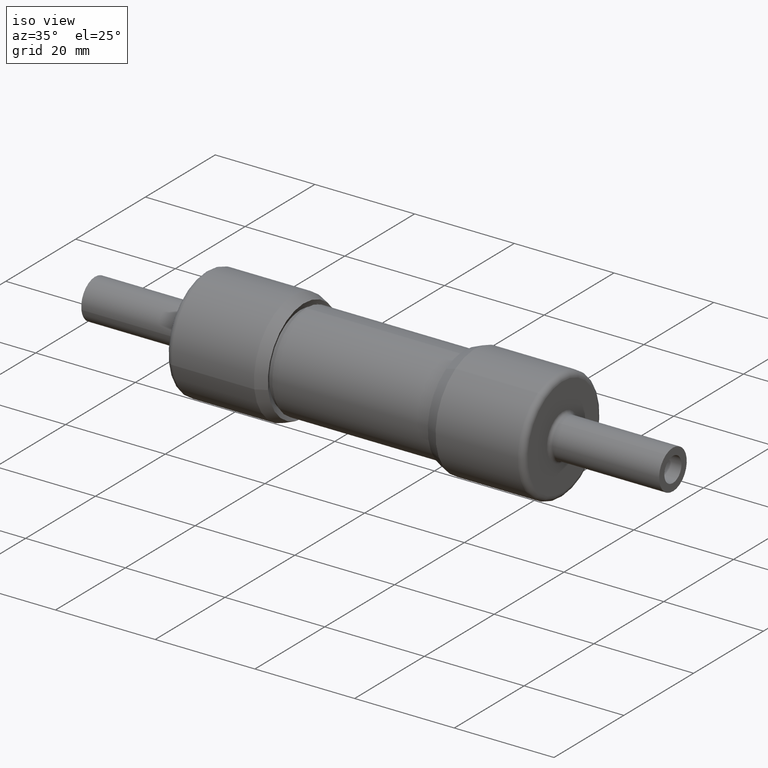
[diagram: clean part render]
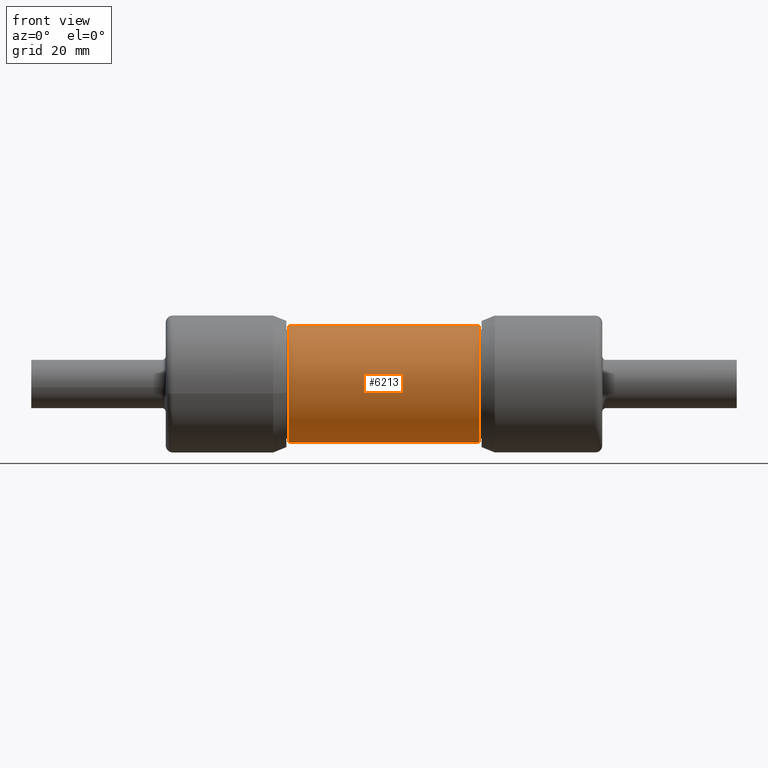
[diagram: tour spotlight — one face highlighted and labeled with its STEP entity id]
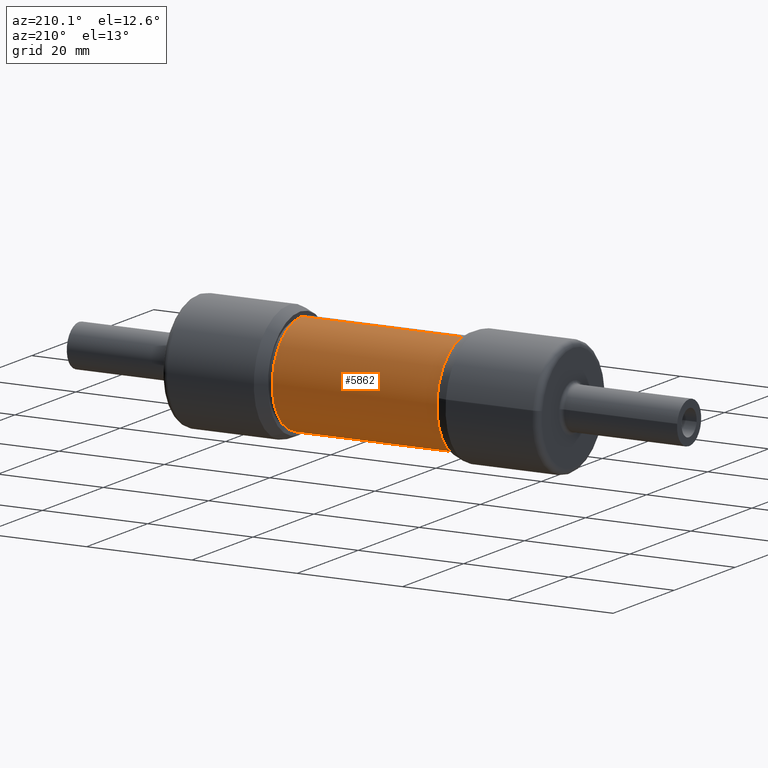
[diagram: tour spotlight — one face highlighted and labeled with its STEP entity id]
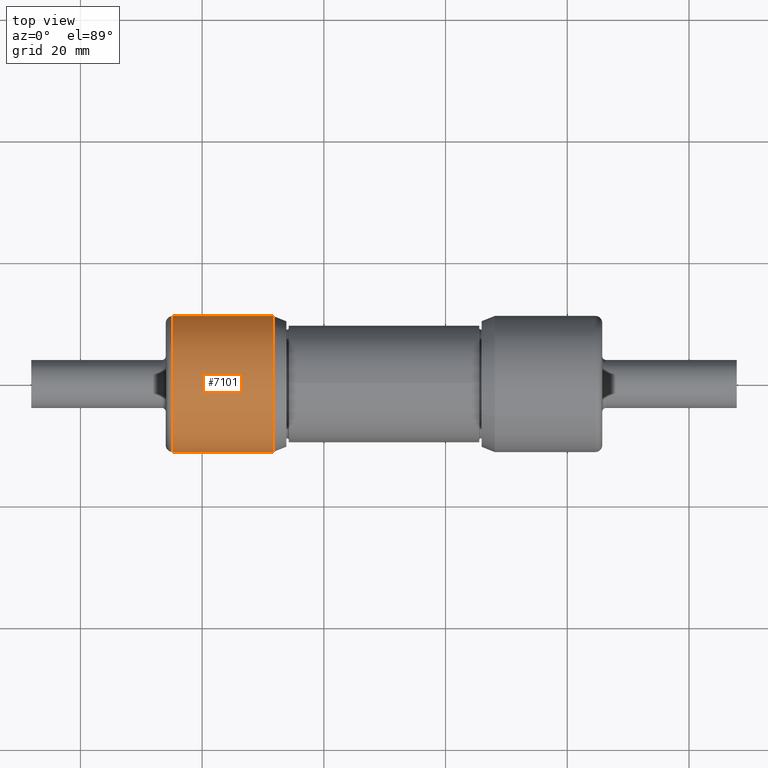
[diagram: tour spotlight — one face highlighted and labeled with its STEP entity id]
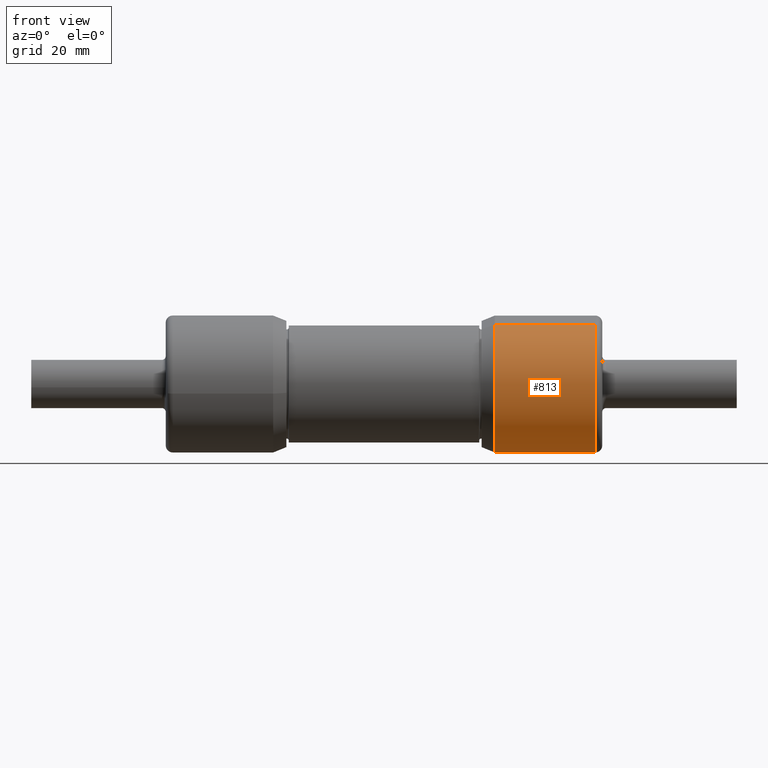
[diagram: tour spotlight — one face highlighted and labeled with its STEP entity id]
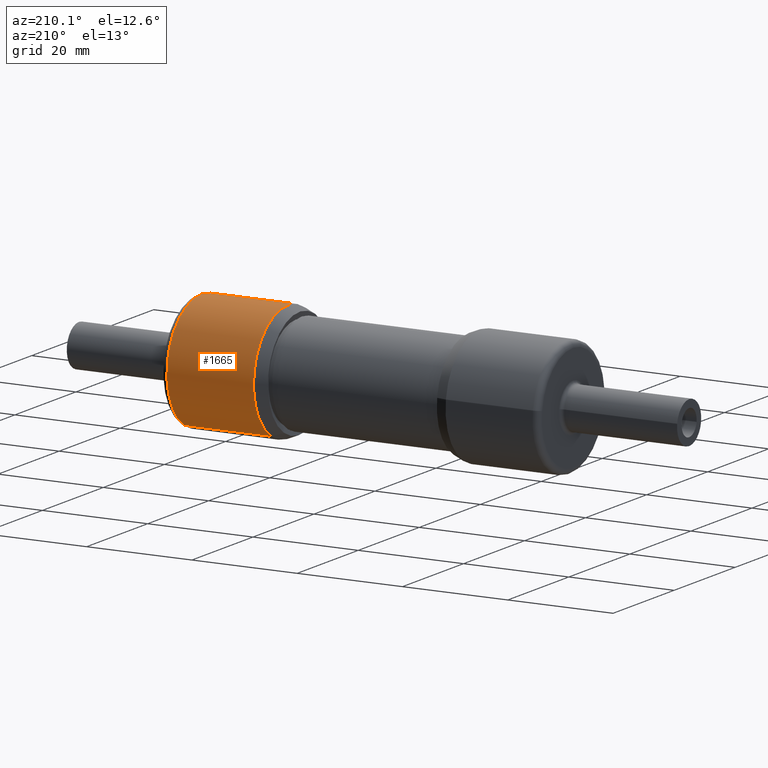
[diagram: tour spotlight — one face highlighted and labeled with its STEP entity id]
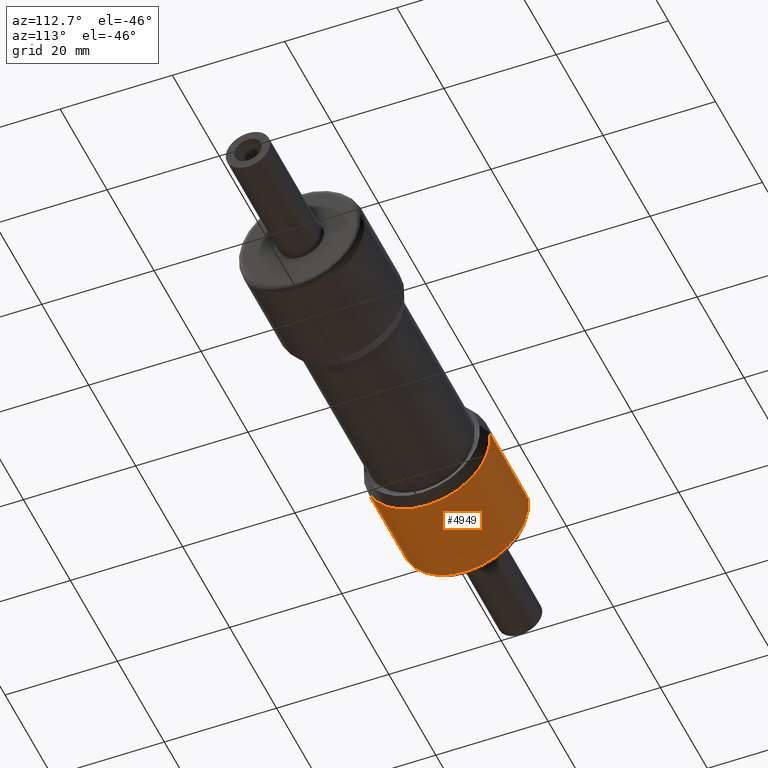
[diagram: tour spotlight — one face highlighted and labeled with its STEP entity id]
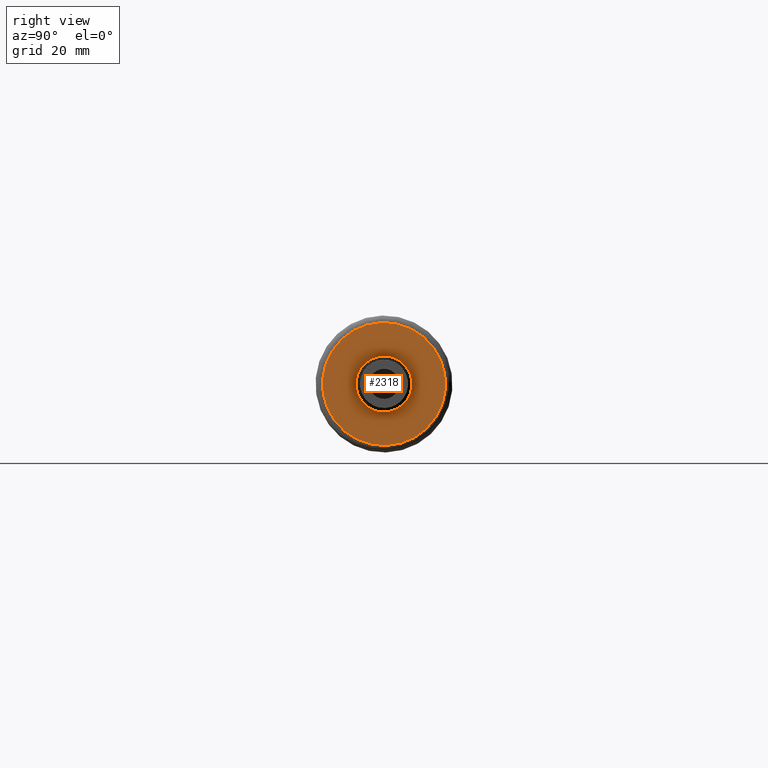
[diagram: tour spotlight — one face highlighted and labeled with its STEP entity id]
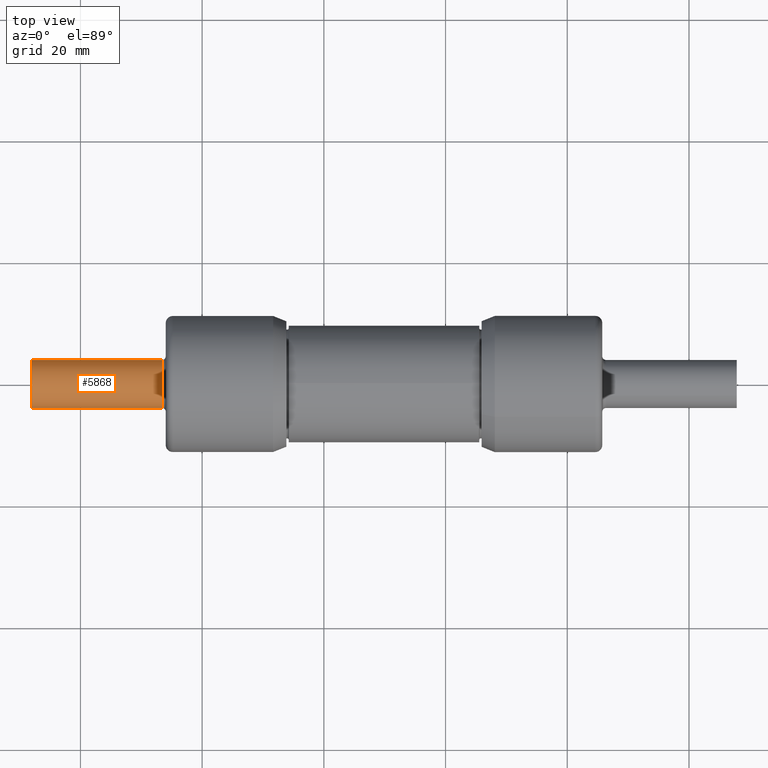
[diagram: tour spotlight — one face highlighted and labeled with its STEP entity id]
A machine part: a face-by-face anatomy tour. The part has 148 B-rep faces; the first image is the clean iso view, then the 8 largest visible faces are spotlighted one at a time (largest first), each with its STEP entity span.

Face 1 — front view, entity #6213. In plain terms, the highlighted cylindrical surface (partial cylindrical patch) has radius 9.6139 mm, axis along (-1, -0, -0).
Definition (entity closure, byte-faithful):
#175 = CYLINDRICAL_SURFACE ( 'NONE', #5671, 0.3785000000000000031 ) ;
#320 = CARTESIAN_POINT ( 'NONE',  ( 0.000000000000000000, 0.000000000000000000, 0.3785000000000000031 ) ) ;
#679 = DIRECTION ( 'NONE',  ( -1.000000000000000000, -0.000000000000000000, -0.000000000000000000 ) ) ;
#906 = CARTESIAN_POINT ( 'NONE',  ( 1.793000000000000149, 4.635288134772732102E-17, -0.3785000000000000031 ) ) ;
#931 = CARTESIAN_POINT ( 'NONE',  ( 0.000000000000000000, 4.635288134772732102E-17, -0.3785000000000000031 ) ) ;
#1742 = VERTEX_POINT ( 'NONE', #3941 ) ;
#1945 = DIRECTION ( 'NONE',  ( 0.000000000000000000, 0.000000000000000000, 1.000000000000000000 ) ) ;
#2062 = CARTESIAN_POINT ( 'NONE',  ( 0.5600000000000000533, 4.635288134772732102E-17, -0.3785000000000000031 ) ) ;
#2264 = DIRECTION ( 'NONE',  ( -1.000000000000000000, -0.000000000000000000, -0.000000000000000000 ) ) ;
#2379 = DIRECTION ( 'NONE',  ( 0.000000000000000000, 0.000000000000000000, 1.000000000000000000 ) ) ;
#2429 = EDGE_CURVE ( 'NONE', #4083, #7023, #3613, .T. ) ;
#2515 = DIRECTION ( 'NONE',  ( -1.000000000000000000, -0.000000000000000000, -0.000000000000000000 ) ) ;
#2835 = CARTESIAN_POINT ( 'NONE',  ( 0.5600000000000000533, 0.000000000000000000, 0.000000000000000000 ) ) ;
#2859 = ORIENTED_EDGE ( 'NONE', *, *, #2429, .F. ) ;
#2904 = CARTESIAN_POINT ( 'NONE',  ( 0.000000000000000000, 0.000000000000000000, 0.000000000000000000 ) ) ;
#2965 = AXIS2_PLACEMENT_3D ( 'NONE', #6874, #5709, #1945 ) ;
#3592 = CIRCLE ( 'NONE', #5546, 0.3785000000000000031 ) ;
#3613 = LINE ( 'NONE', #931, #5716 ) ;
#3614 = EDGE_CURVE ( 'NONE', #4083, #1742, #5730, .T. ) ;
#3915 = DIRECTION ( 'NONE',  ( 0.000000000000000000, 0.000000000000000000, 1.000000000000000000 ) ) ;
#3941 = CARTESIAN_POINT ( 'NONE',  ( 1.793000000000000149, 0.000000000000000000, 0.3785000000000000031 ) ) ;
#4083 = VERTEX_POINT ( 'NONE', #906 ) ;
#4168 = LINE ( 'NONE', #320, #5879 ) ;
#4636 = ORIENTED_EDGE ( 'NONE', *, *, #5703, .F. ) ;
#4810 = EDGE_CURVE ( 'NONE', #1742, #5047, #4168, .T. ) ;
#5047 = VERTEX_POINT ( 'NONE', #6274 ) ;
#5527 = FACE_OUTER_BOUND ( 'NONE', #6955, .T. ) ;
#5528 = ORIENTED_EDGE ( 'NONE', *, *, #4810, .T. ) ;
#5546 = AXIS2_PLACEMENT_3D ( 'NONE', #2835, #2264, #3915 ) ;
#5671 = AXIS2_PLACEMENT_3D ( 'NONE', #2904, #679, #2379 ) ;
#5703 = EDGE_CURVE ( 'NONE', #7023, #5047, #3592, .T. ) ;
#5709 = DIRECTION ( 'NONE',  ( -1.000000000000000000, -0.000000000000000000, -0.000000000000000000 ) ) ;
#5716 = VECTOR ( 'NONE', #6478, 39.37007874015748143 ) ;
#5730 = CIRCLE ( 'NONE', #2965, 0.3785000000000000031 ) ;
#5879 = VECTOR ( 'NONE', #2515, 39.37007874015748143 ) ;
#5968 = ORIENTED_EDGE ( 'NONE', *, *, #3614, .T. ) ;
#6213 = ADVANCED_FACE ( 'NONE', ( #5527 ), #175, .T. ) ;
#6274 = CARTESIAN_POINT ( 'NONE',  ( 0.5600000000000000533, 0.000000000000000000, 0.3785000000000000031 ) ) ;
#6478 = DIRECTION ( 'NONE',  ( -1.000000000000000000, -0.000000000000000000, -0.000000000000000000 ) ) ;
#6874 = CARTESIAN_POINT ( 'NONE',  ( 1.793000000000000149, 0.000000000000000000, 0.000000000000000000 ) ) ;
#6955 = EDGE_LOOP ( 'NONE', ( #2859, #5968, #5528, #4636 ) ) ;
#7023 = VERTEX_POINT ( 'NONE', #2062 ) ;

Face 2 — auxiliary view, entity #5862. In plain terms, the highlighted cylindrical surface (partial cylindrical patch) has radius 9.6139 mm, axis along (-1, -0, -0).
Definition (entity closure, byte-faithful):
#320 = CARTESIAN_POINT ( 'NONE',  ( 0.000000000000000000, 0.000000000000000000, 0.3785000000000000031 ) ) ;
#645 = EDGE_CURVE ( 'NONE', #5047, #7023, #3914, .T. ) ;
#811 = AXIS2_PLACEMENT_3D ( 'NONE', #6917, #4177, #4036 ) ;
#906 = CARTESIAN_POINT ( 'NONE',  ( 1.793000000000000149, 4.635288134772732102E-17, -0.3785000000000000031 ) ) ;
#931 = CARTESIAN_POINT ( 'NONE',  ( 0.000000000000000000, 4.635288134772732102E-17, -0.3785000000000000031 ) ) ;
#1034 = EDGE_CURVE ( 'NONE', #1742, #4083, #4799, .T. ) ;
#1399 = AXIS2_PLACEMENT_3D ( 'NONE', #5873, #5842, #2157 ) ;
#1674 = DIRECTION ( 'NONE',  ( -1.000000000000000000, -0.000000000000000000, -0.000000000000000000 ) ) ;
#1706 = AXIS2_PLACEMENT_3D ( 'NONE', #6904, #1674, #5872 ) ;
#1742 = VERTEX_POINT ( 'NONE', #3941 ) ;
#1931 = CYLINDRICAL_SURFACE ( 'NONE', #1399, 0.3785000000000000031 ) ;
#2062 = CARTESIAN_POINT ( 'NONE',  ( 0.5600000000000000533, 4.635288134772732102E-17, -0.3785000000000000031 ) ) ;
#2157 = DIRECTION ( 'NONE',  ( 0.000000000000000000, 0.000000000000000000, 1.000000000000000000 ) ) ;
#2322 = ORIENTED_EDGE ( 'NONE', *, *, #1034, .T. ) ;
#2366 = ORIENTED_EDGE ( 'NONE', *, *, #4810, .F. ) ;
#2429 = EDGE_CURVE ( 'NONE', #4083, #7023, #3613, .T. ) ;
#2515 = DIRECTION ( 'NONE',  ( -1.000000000000000000, -0.000000000000000000, -0.000000000000000000 ) ) ;
#3613 = LINE ( 'NONE', #931, #5716 ) ;
#3914 = CIRCLE ( 'NONE', #811, 0.3785000000000000031 ) ;
#3941 = CARTESIAN_POINT ( 'NONE',  ( 1.793000000000000149, 0.000000000000000000, 0.3785000000000000031 ) ) ;
#4036 = DIRECTION ( 'NONE',  ( 0.000000000000000000, 0.000000000000000000, 1.000000000000000000 ) ) ;
#4083 = VERTEX_POINT ( 'NONE', #906 ) ;
#4168 = LINE ( 'NONE', #320, #5879 ) ;
#4177 = DIRECTION ( 'NONE',  ( -1.000000000000000000, -0.000000000000000000, -0.000000000000000000 ) ) ;
#4563 = EDGE_LOOP ( 'NONE', ( #2322, #6708, #5898, #2366 ) ) ;
#4799 = CIRCLE ( 'NONE', #1706, 0.3785000000000000031 ) ;
#4810 = EDGE_CURVE ( 'NONE', #1742, #5047, #4168, .T. ) ;
#5047 = VERTEX_POINT ( 'NONE', #6274 ) ;
#5716 = VECTOR ( 'NONE', #6478, 39.37007874015748143 ) ;
#5842 = DIRECTION ( 'NONE',  ( -1.000000000000000000, -0.000000000000000000, -0.000000000000000000 ) ) ;
#5862 = ADVANCED_FACE ( 'NONE', ( #6205 ), #1931, .T. ) ;
#5872 = DIRECTION ( 'NONE',  ( 0.000000000000000000, 0.000000000000000000, 1.000000000000000000 ) ) ;
#5873 = CARTESIAN_POINT ( 'NONE',  ( 0.000000000000000000, 0.000000000000000000, 0.000000000000000000 ) ) ;
#5879 = VECTOR ( 'NONE', #2515, 39.37007874015748143 ) ;
#5898 = ORIENTED_EDGE ( 'NONE', *, *, #645, .F. ) ;
#6205 = FACE_OUTER_BOUND ( 'NONE', #4563, .T. ) ;
#6274 = CARTESIAN_POINT ( 'NONE',  ( 0.5600000000000000533, 0.000000000000000000, 0.3785000000000000031 ) ) ;
#6478 = DIRECTION ( 'NONE',  ( -1.000000000000000000, -0.000000000000000000, -0.000000000000000000 ) ) ;
#6708 = ORIENTED_EDGE ( 'NONE', *, *, #2429, .T. ) ;
#6904 = CARTESIAN_POINT ( 'NONE',  ( 1.793000000000000149, 0.000000000000000000, 0.000000000000000000 ) ) ;
#6917 = CARTESIAN_POINT ( 'NONE',  ( 0.5600000000000000533, 0.000000000000000000, 0.000000000000000000 ) ) ;
#7023 = VERTEX_POINT ( 'NONE', #2062 ) ;

Face 3 — top view, entity #7101. In plain terms, the highlighted cylindrical surface (partial cylindrical patch) has radius 11.2522 mm, axis along (-1, 0, -0).
Definition (entity closure, byte-faithful):
#18 = CARTESIAN_POINT ( 'NONE',  ( -0.2355000000000000149, -0.4386126864278156456, -0.06219253415463995432 ) ) ;
#568 = LINE ( 'NONE', #18, #3323 ) ;
#605 = EDGE_CURVE ( 'NONE', #3785, #4110, #5056, .T. ) ;
#691 = EDGE_LOOP ( 'NONE', ( #6012, #3832, #5855, #5286 ) ) ;
#831 = DIRECTION ( 'NONE',  ( -1.000000000000000000, 8.586881206085282632E-17, -8.326672684688819499E-17 ) ) ;
#1076 = LINE ( 'NONE', #5351, #7047 ) ;
#1119 = CARTESIAN_POINT ( 'NONE',  ( -0.1904999999999999472, 0.4386126864278159232, 0.06219253415463967677 ) ) ;
#1580 = CARTESIAN_POINT ( 'NONE',  ( -0.1905000000000000304, -0.4386126864278139803, -0.06219253415463969065 ) ) ;
#1959 = CARTESIAN_POINT ( 'NONE',  ( 0.4575561969086228697, 0.4386126864278158122, 0.06219253415463972534 ) ) ;
#2165 = DIRECTION ( 'NONE',  ( -1.000000000000000000, 8.586881206085282632E-17, -8.326672684688819499E-17 ) ) ;
#2224 = DIRECTION ( 'NONE',  ( -1.000000000000000000, 8.586881206085282632E-17, -8.326672684688819499E-17 ) ) ;
#2374 = AXIS2_PLACEMENT_3D ( 'NONE', #3414, #6865, #4233 ) ;
#2652 = AXIS2_PLACEMENT_3D ( 'NONE', #5748, #831, #5134 ) ;
#2798 = EDGE_CURVE ( 'NONE', #3785, #3491, #568, .T. ) ;
#3053 = DIRECTION ( 'NONE',  ( 7.708374699955566724E-17, 0.9900963576248625886, 0.1403894676176964951 ) ) ;
#3071 = CARTESIAN_POINT ( 'NONE',  ( 0.4575561969086228697, -0.4386126864278140358, -0.06219253415463969759 ) ) ;
#3234 = AXIS2_PLACEMENT_3D ( 'NONE', #4721, #6333, #3053 ) ;
#3323 = VECTOR ( 'NONE', #2224, 39.37007874015748143 ) ;
#3414 = CARTESIAN_POINT ( 'NONE',  ( -0.2354999999999999871, 1.212467626299230878E-16, -1.175726183078043669E-16 ) ) ;
#3491 = VERTEX_POINT ( 'NONE', #1580 ) ;
#3785 = VERTEX_POINT ( 'NONE', #3071 ) ;
#3832 = ORIENTED_EDGE ( 'NONE', *, *, #605, .T. ) ;
#3986 = EDGE_CURVE ( 'NONE', #3491, #5166, #4385, .T. ) ;
#4110 = VERTEX_POINT ( 'NONE', #1959 ) ;
#4233 = DIRECTION ( 'NONE',  ( 7.708374699955566724E-17, 0.9900963576248625886, 0.1403894676176964951 ) ) ;
#4385 = CIRCLE ( 'NONE', #3234, 0.4430000000000016702 ) ;
#4721 = CARTESIAN_POINT ( 'NONE',  ( -0.1905000000000000027, 1.173826660871846159E-16, -1.138256155996946668E-16 ) ) ;
#5056 = CIRCLE ( 'NONE', #2652, 0.4430000000000016702 ) ;
#5134 = DIRECTION ( 'NONE',  ( 0.000000000000000000, 0.9900963576248625886, 0.1403894676176964951 ) ) ;
#5166 = VERTEX_POINT ( 'NONE', #1119 ) ;
#5286 = ORIENTED_EDGE ( 'NONE', *, *, #3986, .F. ) ;
#5351 = CARTESIAN_POINT ( 'NONE',  ( -0.2354999999999999594, 0.4386126864278159232, 0.06219253415463966289 ) ) ;
#5535 = CYLINDRICAL_SURFACE ( 'NONE', #2374, 0.4430000000000016702 ) ;
#5605 = FACE_OUTER_BOUND ( 'NONE', #691, .T. ) ;
#5642 = EDGE_CURVE ( 'NONE', #4110, #5166, #1076, .T. ) ;
#5748 = CARTESIAN_POINT ( 'NONE',  ( 0.4575561969086228697, 6.173485030996724733E-17, -5.986409727027109720E-17 ) ) ;
#5855 = ORIENTED_EDGE ( 'NONE', *, *, #5642, .T. ) ;
#6012 = ORIENTED_EDGE ( 'NONE', *, *, #2798, .F. ) ;
#6333 = DIRECTION ( 'NONE',  ( -1.000000000000000000, 8.586881206085282632E-17, -8.326672684688819499E-17 ) ) ;
#6865 = DIRECTION ( 'NONE',  ( -1.000000000000000000, 8.586881206085282632E-17, -8.326672684688819499E-17 ) ) ;
#7047 = VECTOR ( 'NONE', #2165, 39.37007874015748143 ) ;
#7101 = ADVANCED_FACE ( 'NONE', ( #5605 ), #5535, .T. ) ;

Face 4 — front view, entity #813. In plain terms, the highlighted cylindrical surface (partial cylindrical patch) has radius 11.2522 mm, axis along (1, 0, 0).
Definition (entity closure, byte-faithful):
#37 = FACE_OUTER_BOUND ( 'NONE', #5969, .T. ) ;
#157 = CARTESIAN_POINT ( 'NONE',  ( 2.543499999999999872, 0.2194269814759292614, -0.3848386672364975669 ) ) ;
#213 = CIRCLE ( 'NONE', #5951, 0.4430000000000016702 ) ;
#225 = AXIS2_PLACEMENT_3D ( 'NONE', #1797, #654, #3343 ) ;
#266 = DIRECTION ( 'NONE',  ( 1.000000000000000000, 3.268530736865042060E-17, 1.387778780781465705E-17 ) ) ;
#538 = CARTESIAN_POINT ( 'NONE',  ( 1.895443803091377166, 0.2194269814759292614, -0.3848386672364975669 ) ) ;
#654 = DIRECTION ( 'NONE',  ( 1.000000000000000000, 3.268530736865042060E-17, 1.387778780781465705E-17 ) ) ;
#735 = VERTEX_POINT ( 'NONE', #1538 ) ;
#813 = ADVANCED_FACE ( 'NONE', ( #37 ), #6698, .T. ) ;
#903 = DIRECTION ( 'NONE',  ( 0.000000000000000000, 0.4953204999456624624, -0.8687103097889301573 ) ) ;
#1014 = CARTESIAN_POINT ( 'NONE',  ( 2.588499999999999801, -0.2194269814759292891, 0.3848386672364975114 ) ) ;
#1054 = LINE ( 'NONE', #1014, #4174 ) ;
#1092 = ORIENTED_EDGE ( 'NONE', *, *, #2927, .F. ) ;
#1156 = ORIENTED_EDGE ( 'NONE', *, *, #4652, .F. ) ;
#1439 = VERTEX_POINT ( 'NONE', #538 ) ;
#1516 = DIRECTION ( 'NONE',  ( 1.000000000000000000, 3.268530736865042060E-17, 1.387778780781465705E-17 ) ) ;
#1538 = CARTESIAN_POINT ( 'NONE',  ( 2.543499999999999872, -0.2194269814759284287, 0.3848386672364960126 ) ) ;
#1628 = CARTESIAN_POINT ( 'NONE',  ( 1.895443803091377166, -0.2194269814759284287, 0.3848386672364960126 ) ) ;
#1750 = EDGE_CURVE ( 'NONE', #1439, #5203, #2830, .T. ) ;
#1797 = CARTESIAN_POINT ( 'NONE',  ( 2.588499999999999801, -1.718619007957251097E-17, -3.690103778097871797E-17 ) ) ;
#2332 = DIRECTION ( 'NONE',  ( 1.000000000000000000, 3.268530736865042060E-17, 1.387778780781465705E-17 ) ) ;
#2669 = VECTOR ( 'NONE', #2332, 39.37007874015748143 ) ;
#2830 = LINE ( 'NONE', #5014, #2669 ) ;
#2927 = EDGE_CURVE ( 'NONE', #735, #5203, #4580, .T. ) ;
#2945 = ORIENTED_EDGE ( 'NONE', *, *, #1750, .T. ) ;
#3343 = DIRECTION ( 'NONE',  ( 0.000000000000000000, 0.4953204999456624624, -0.8687103097889301573 ) ) ;
#3371 = EDGE_CURVE ( 'NONE', #6116, #1439, #213, .T. ) ;
#3544 = DIRECTION ( 'NONE',  ( 0.000000000000000000, 0.4953204999456624624, -0.8687103097889301573 ) ) ;
#3646 = CARTESIAN_POINT ( 'NONE',  ( 1.895443803091377166, -3.983894489927855654E-17, -4.651912462056757366E-17 ) ) ;
#4174 = VECTOR ( 'NONE', #1516, 39.37007874015748143 ) ;
#4360 = AXIS2_PLACEMENT_3D ( 'NONE', #5151, #6163, #3544 ) ;
#4580 = CIRCLE ( 'NONE', #4360, 0.4430000000000016702 ) ;
#4652 = EDGE_CURVE ( 'NONE', #6116, #735, #1054, .T. ) ;
#5014 = CARTESIAN_POINT ( 'NONE',  ( 2.588499999999999801, 0.2194269814759292614, -0.3848386672364975669 ) ) ;
#5151 = CARTESIAN_POINT ( 'NONE',  ( 2.543499999999999872, -1.865702891116162632E-17, -3.752553823233013334E-17 ) ) ;
#5203 = VERTEX_POINT ( 'NONE', #157 ) ;
#5386 = ORIENTED_EDGE ( 'NONE', *, *, #3371, .T. ) ;
#5951 = AXIS2_PLACEMENT_3D ( 'NONE', #3646, #266, #903 ) ;
#5969 = EDGE_LOOP ( 'NONE', ( #1156, #5386, #2945, #1092 ) ) ;
#6116 = VERTEX_POINT ( 'NONE', #1628 ) ;
#6163 = DIRECTION ( 'NONE',  ( 1.000000000000000000, 3.268530736865042060E-17, 1.387778780781465705E-17 ) ) ;
#6698 = CYLINDRICAL_SURFACE ( 'NONE', #225, 0.4430000000000016702 ) ;

Face 5 — auxiliary view, entity #1665. In plain terms, the highlighted cylindrical surface (partial cylindrical patch) has radius 11.2522 mm, axis along (1, 0, 0).
Definition (entity closure, byte-faithful):
#157 = CARTESIAN_POINT ( 'NONE',  ( 2.543499999999999872, 0.2194269814759292614, -0.3848386672364975669 ) ) ;
#165 = AXIS2_PLACEMENT_3D ( 'NONE', #3729, #4373, #4334 ) ;
#268 = ORIENTED_EDGE ( 'NONE', *, *, #6838, .F. ) ;
#500 = DIRECTION ( 'NONE',  ( 0.000000000000000000, 0.4953204999456624624, -0.8687103097889301573 ) ) ;
#538 = CARTESIAN_POINT ( 'NONE',  ( 1.895443803091377166, 0.2194269814759292614, -0.3848386672364975669 ) ) ;
#735 = VERTEX_POINT ( 'NONE', #1538 ) ;
#1014 = CARTESIAN_POINT ( 'NONE',  ( 2.588499999999999801, -0.2194269814759292891, 0.3848386672364975114 ) ) ;
#1054 = LINE ( 'NONE', #1014, #4174 ) ;
#1107 = EDGE_LOOP ( 'NONE', ( #5680, #4785, #268, #5861 ) ) ;
#1347 = AXIS2_PLACEMENT_3D ( 'NONE', #4565, #1648, #500 ) ;
#1370 = EDGE_CURVE ( 'NONE', #1439, #6116, #2284, .T. ) ;
#1439 = VERTEX_POINT ( 'NONE', #538 ) ;
#1516 = DIRECTION ( 'NONE',  ( 1.000000000000000000, 3.268530736865042060E-17, 1.387778780781465705E-17 ) ) ;
#1538 = CARTESIAN_POINT ( 'NONE',  ( 2.543499999999999872, -0.2194269814759284287, 0.3848386672364960126 ) ) ;
#1628 = CARTESIAN_POINT ( 'NONE',  ( 1.895443803091377166, -0.2194269814759284287, 0.3848386672364960126 ) ) ;
#1648 = DIRECTION ( 'NONE',  ( 1.000000000000000000, 3.268530736865042060E-17, 1.387778780781465705E-17 ) ) ;
#1665 = ADVANCED_FACE ( 'NONE', ( #3758 ), #4906, .T. ) ;
#1676 = AXIS2_PLACEMENT_3D ( 'NONE', #5867, #4225, #3794 ) ;
#1750 = EDGE_CURVE ( 'NONE', #1439, #5203, #2830, .T. ) ;
#2284 = CIRCLE ( 'NONE', #1347, 0.4430000000000016702 ) ;
#2332 = DIRECTION ( 'NONE',  ( 1.000000000000000000, 3.268530736865042060E-17, 1.387778780781465705E-17 ) ) ;
#2669 = VECTOR ( 'NONE', #2332, 39.37007874015748143 ) ;
#2830 = LINE ( 'NONE', #5014, #2669 ) ;
#3729 = CARTESIAN_POINT ( 'NONE',  ( 2.588499999999999801, -1.718619007957251097E-17, -3.690103778097871797E-17 ) ) ;
#3758 = FACE_OUTER_BOUND ( 'NONE', #1107, .T. ) ;
#3794 = DIRECTION ( 'NONE',  ( 0.000000000000000000, 0.4953204999456624624, -0.8687103097889301573 ) ) ;
#4174 = VECTOR ( 'NONE', #1516, 39.37007874015748143 ) ;
#4225 = DIRECTION ( 'NONE',  ( 1.000000000000000000, 3.268530736865042060E-17, 1.387778780781465705E-17 ) ) ;
#4334 = DIRECTION ( 'NONE',  ( 0.000000000000000000, 0.4953204999456624624, -0.8687103097889301573 ) ) ;
#4373 = DIRECTION ( 'NONE',  ( 1.000000000000000000, 3.268530736865042060E-17, 1.387778780781465705E-17 ) ) ;
#4565 = CARTESIAN_POINT ( 'NONE',  ( 1.895443803091377166, -3.983894489927855654E-17, -4.651912462056757366E-17 ) ) ;
#4652 = EDGE_CURVE ( 'NONE', #6116, #735, #1054, .T. ) ;
#4785 = ORIENTED_EDGE ( 'NONE', *, *, #4652, .T. ) ;
#4906 = CYLINDRICAL_SURFACE ( 'NONE', #165, 0.4430000000000016702 ) ;
#5014 = CARTESIAN_POINT ( 'NONE',  ( 2.588499999999999801, 0.2194269814759292614, -0.3848386672364975669 ) ) ;
#5203 = VERTEX_POINT ( 'NONE', #157 ) ;
#5338 = CIRCLE ( 'NONE', #1676, 0.4430000000000016702 ) ;
#5680 = ORIENTED_EDGE ( 'NONE', *, *, #1370, .T. ) ;
#5861 = ORIENTED_EDGE ( 'NONE', *, *, #1750, .F. ) ;
#5867 = CARTESIAN_POINT ( 'NONE',  ( 2.543499999999999872, -1.865702891116162632E-17, -3.752553823233013334E-17 ) ) ;
#6116 = VERTEX_POINT ( 'NONE', #1628 ) ;
#6838 = EDGE_CURVE ( 'NONE', #5203, #735, #5338, .T. ) ;

Face 6 — auxiliary view, entity #4949. In plain terms, the highlighted cylindrical surface (partial cylindrical patch) has radius 11.2522 mm, axis along (-1, 0, -0).
Definition (entity closure, byte-faithful):
#18 = CARTESIAN_POINT ( 'NONE',  ( -0.2355000000000000149, -0.4386126864278156456, -0.06219253415463995432 ) ) ;
#140 = AXIS2_PLACEMENT_3D ( 'NONE', #2463, #6379, #4252 ) ;
#568 = LINE ( 'NONE', #18, #3323 ) ;
#666 = EDGE_CURVE ( 'NONE', #4110, #3785, #3573, .T. ) ;
#701 = ORIENTED_EDGE ( 'NONE', *, *, #5642, .F. ) ;
#1076 = LINE ( 'NONE', #5351, #7047 ) ;
#1119 = CARTESIAN_POINT ( 'NONE',  ( -0.1904999999999999472, 0.4386126864278159232, 0.06219253415463967677 ) ) ;
#1182 = ORIENTED_EDGE ( 'NONE', *, *, #666, .T. ) ;
#1234 = DIRECTION ( 'NONE',  ( 7.708374699955566724E-17, 0.9900963576248625886, 0.1403894676176964951 ) ) ;
#1429 = DIRECTION ( 'NONE',  ( -1.000000000000000000, 8.586881206085282632E-17, -8.326672684688819499E-17 ) ) ;
#1580 = CARTESIAN_POINT ( 'NONE',  ( -0.1905000000000000304, -0.4386126864278139803, -0.06219253415463969065 ) ) ;
#1650 = DIRECTION ( 'NONE',  ( -1.000000000000000000, 8.586881206085282632E-17, -8.326672684688819499E-17 ) ) ;
#1959 = CARTESIAN_POINT ( 'NONE',  ( 0.4575561969086228697, 0.4386126864278158122, 0.06219253415463972534 ) ) ;
#2090 = EDGE_LOOP ( 'NONE', ( #1182, #4719, #4752, #701 ) ) ;
#2165 = DIRECTION ( 'NONE',  ( -1.000000000000000000, 8.586881206085282632E-17, -8.326672684688819499E-17 ) ) ;
#2211 = CIRCLE ( 'NONE', #140, 0.4430000000000016702 ) ;
#2224 = DIRECTION ( 'NONE',  ( -1.000000000000000000, 8.586881206085282632E-17, -8.326672684688819499E-17 ) ) ;
#2463 = CARTESIAN_POINT ( 'NONE',  ( -0.1905000000000000027, 1.173826660871846159E-16, -1.138256155996946668E-16 ) ) ;
#2765 = CYLINDRICAL_SURFACE ( 'NONE', #3836, 0.4430000000000016702 ) ;
#2798 = EDGE_CURVE ( 'NONE', #3785, #3491, #568, .T. ) ;
#3071 = CARTESIAN_POINT ( 'NONE',  ( 0.4575561969086228697, -0.4386126864278140358, -0.06219253415463969759 ) ) ;
#3323 = VECTOR ( 'NONE', #2224, 39.37007874015748143 ) ;
#3405 = FACE_OUTER_BOUND ( 'NONE', #2090, .T. ) ;
#3491 = VERTEX_POINT ( 'NONE', #1580 ) ;
#3573 = CIRCLE ( 'NONE', #4490, 0.4430000000000016702 ) ;
#3641 = DIRECTION ( 'NONE',  ( 0.000000000000000000, 0.9900963576248625886, 0.1403894676176964951 ) ) ;
#3785 = VERTEX_POINT ( 'NONE', #3071 ) ;
#3836 = AXIS2_PLACEMENT_3D ( 'NONE', #6165, #1650, #1234 ) ;
#4023 = EDGE_CURVE ( 'NONE', #5166, #3491, #2211, .T. ) ;
#4110 = VERTEX_POINT ( 'NONE', #1959 ) ;
#4252 = DIRECTION ( 'NONE',  ( 7.708374699955566724E-17, 0.9900963576248625886, 0.1403894676176964951 ) ) ;
#4490 = AXIS2_PLACEMENT_3D ( 'NONE', #6371, #1429, #3641 ) ;
#4719 = ORIENTED_EDGE ( 'NONE', *, *, #2798, .T. ) ;
#4752 = ORIENTED_EDGE ( 'NONE', *, *, #4023, .F. ) ;
#4949 = ADVANCED_FACE ( 'NONE', ( #3405 ), #2765, .T. ) ;
#5166 = VERTEX_POINT ( 'NONE', #1119 ) ;
#5351 = CARTESIAN_POINT ( 'NONE',  ( -0.2354999999999999594, 0.4386126864278159232, 0.06219253415463966289 ) ) ;
#5642 = EDGE_CURVE ( 'NONE', #4110, #5166, #1076, .T. ) ;
#6165 = CARTESIAN_POINT ( 'NONE',  ( -0.2354999999999999871, 1.212467626299230878E-16, -1.175726183078043669E-16 ) ) ;
#6371 = CARTESIAN_POINT ( 'NONE',  ( 0.4575561969086228697, 6.173485030996724733E-17, -5.986409727027109720E-17 ) ) ;
#6379 = DIRECTION ( 'NONE',  ( -1.000000000000000000, 8.586881206085282632E-17, -8.326672684688819499E-17 ) ) ;
#7047 = VECTOR ( 'NONE', #2165, 39.37007874015748143 ) ;

Face 7 — right view, entity #2318. In plain terms, the highlighted planar face has unit normal (1, 0, 0).
Definition (entity closure, byte-faithful):
#7 = DIRECTION ( 'NONE',  ( -1.000000000000000000, -3.268530736865042060E-17, -1.387778780781465705E-17 ) ) ;
#129 = ORIENTED_EDGE ( 'NONE', *, *, #1909, .T. ) ;
#331 = AXIS2_PLACEMENT_3D ( 'NONE', #4999, #2315, #4497 ) ;
#483 = AXIS2_PLACEMENT_3D ( 'NONE', #1710, #7, #4437 ) ;
#525 = DIRECTION ( 'NONE',  ( -1.000000000000000000, -3.268530736865042060E-17, -1.387778780781465705E-17 ) ) ;
#580 = DIRECTION ( 'NONE',  ( 1.000000000000000000, 3.268530736865042060E-17, 1.387778780781465705E-17 ) ) ;
#668 = FACE_BOUND ( 'NONE', #1568, .T. ) ;
#872 = DIRECTION ( 'NONE',  ( 1.000000000000000000, 3.268530736864990907E-17, 1.387778780781554452E-17 ) ) ;
#1118 = CARTESIAN_POINT ( 'NONE',  ( 2.588499999999999801, -1.718619007957251097E-17, -3.690103778097871797E-17 ) ) ;
#1388 = CARTESIAN_POINT ( 'NONE',  ( 2.588499999999999801, -0.1971375589783743720, 0.3457467032959954945 ) ) ;
#1510 = ORIENTED_EDGE ( 'NONE', *, *, #3582, .T. ) ;
#1568 = EDGE_LOOP ( 'NONE', ( #129, #4084 ) ) ;
#1710 = CARTESIAN_POINT ( 'NONE',  ( 2.588499999999999801, -1.718619007957251097E-17, -3.690103778097871797E-17 ) ) ;
#1909 = EDGE_CURVE ( 'NONE', #1956, #4969, #4965, .T. ) ;
#1956 = VERTEX_POINT ( 'NONE', #4935 ) ;
#2274 = EDGE_LOOP ( 'NONE', ( #6152, #1510 ) ) ;
#2315 = DIRECTION ( 'NONE',  ( 1.000000000000000000, 3.268530736865042060E-17, 1.387778780781465705E-17 ) ) ;
#2318 = ADVANCED_FACE ( 'NONE', ( #668, #2854 ), #5043, .T. ) ;
#2712 = DIRECTION ( 'NONE',  ( 0.000000000000000000, 0.4953204999456624624, -0.8687103097889301573 ) ) ;
#2854 = FACE_OUTER_BOUND ( 'NONE', #2274, .T. ) ;
#3089 = CARTESIAN_POINT ( 'NONE',  ( 2.588499999999999801, -1.718619007957251097E-17, -3.690103778097871797E-17 ) ) ;
#3194 = DIRECTION ( 'NONE',  ( 0.000000000000000000, 0.4953204999456625179, -0.8687103097889300463 ) ) ;
#3582 = EDGE_CURVE ( 'NONE', #4399, #6257, #6532, .T. ) ;
#3693 = CIRCLE ( 'NONE', #483, 0.1810000000000006881 ) ;
#3813 = AXIS2_PLACEMENT_3D ( 'NONE', #5925, #580, #3194 ) ;
#4084 = ORIENTED_EDGE ( 'NONE', *, *, #5159, .T. ) ;
#4278 = AXIS2_PLACEMENT_3D ( 'NONE', #1118, #525, #2712 ) ;
#4399 = VERTEX_POINT ( 'NONE', #1388 ) ;
#4437 = DIRECTION ( 'NONE',  ( 0.000000000000000000, 0.4953204999456624624, -0.8687103097889301573 ) ) ;
#4451 = CARTESIAN_POINT ( 'NONE',  ( 2.588499999999999801, -0.08965301049016521917, 0.1572365660717969238 ) ) ;
#4497 = DIRECTION ( 'NONE',  ( 0.000000000000000000, 0.4953204999456625179, -0.8687103097889300463 ) ) ;
#4737 = CIRCLE ( 'NONE', #3813, 0.3980000000000015192 ) ;
#4935 = CARTESIAN_POINT ( 'NONE',  ( 2.588499999999999801, 0.08965301049016521917, -0.1572365660717969793 ) ) ;
#4965 = CIRCLE ( 'NONE', #4278, 0.1810000000000006881 ) ;
#4969 = VERTEX_POINT ( 'NONE', #4451 ) ;
#4999 = CARTESIAN_POINT ( 'NONE',  ( 2.588499999999999801, -1.718619007957251097E-17, -3.690103778097871797E-17 ) ) ;
#5043 = PLANE ( 'NONE',  #6882 ) ;
#5061 = CARTESIAN_POINT ( 'NONE',  ( 2.588499999999999801, 0.1971375589783743720, -0.3457467032959955500 ) ) ;
#5159 = EDGE_CURVE ( 'NONE', #4969, #1956, #3693, .T. ) ;
#5283 = DIRECTION ( 'NONE',  ( -4.133925441004836026E-18, 0.4953204999456624624, -0.8687103097889302683 ) ) ;
#5515 = EDGE_CURVE ( 'NONE', #6257, #4399, #4737, .T. ) ;
#5925 = CARTESIAN_POINT ( 'NONE',  ( 2.588499999999999801, -1.718619007957251097E-17, -3.690103778097871797E-17 ) ) ;
#6152 = ORIENTED_EDGE ( 'NONE', *, *, #5515, .T. ) ;
#6257 = VERTEX_POINT ( 'NONE', #5061 ) ;
#6532 = CIRCLE ( 'NONE', #331, 0.3980000000000015192 ) ;
#6882 = AXIS2_PLACEMENT_3D ( 'NONE', #3089, #872, #5283 ) ;

Face 8 — top view, entity #5868. In plain terms, the highlighted cylindrical surface (edge-blend (fillet) strip) has radius 3.9624 mm, axis along (1, -0, 0).
Definition (entity closure, byte-faithful):
#359 = CARTESIAN_POINT ( 'NONE',  ( -1.105499999999999927, -0.1544550317894789193, -0.02190075694836092490 ) ) ;
#548 = CARTESIAN_POINT ( 'NONE',  ( -1.105499999999999927, 0.1544550317894787528, 0.02190075694836048428 ) ) ;
#619 = CIRCLE ( 'NONE', #5314, 0.1560000000000005549 ) ;
#984 = VECTOR ( 'NONE', #4822, 39.37007874015748143 ) ;
#989 = FACE_OUTER_BOUND ( 'NONE', #2537, .T. ) ;
#1009 = LINE ( 'NONE', #4896, #6524 ) ;
#1077 = EDGE_CURVE ( 'NONE', #5583, #3232, #1009, .T. ) ;
#1470 = CARTESIAN_POINT ( 'NONE',  ( -0.2354999999999999871, 0.1544550317894792524, 0.02190075694836059531 ) ) ;
#1763 = DIRECTION ( 'NONE',  ( 0.000000000000000000, -0.9900963576248625886, -0.1403894676176965228 ) ) ;
#1895 = CARTESIAN_POINT ( 'NONE',  ( -0.2605000000000000093, 0.1544550317894786695, 0.02190075694836047734 ) ) ;
#2150 = DIRECTION ( 'NONE',  ( 1.000000000000000000, -8.586881206085282632E-17, 8.326672684688819499E-17 ) ) ;
#2537 = EDGE_LOOP ( 'NONE', ( #6040, #4588, #4533, #3496 ) ) ;
#3142 = DIRECTION ( 'NONE',  ( 1.000000000000000000, -8.586881206085282632E-17, 8.326672684688819499E-17 ) ) ;
#3176 = DIRECTION ( 'NONE',  ( 0.000000000000000000, -0.9900963576248625886, -0.1403894676176965228 ) ) ;
#3232 = VERTEX_POINT ( 'NONE', #5084 ) ;
#3475 = AXIS2_PLACEMENT_3D ( 'NONE', #3761, #3142, #3176 ) ;
#3496 = ORIENTED_EDGE ( 'NONE', *, *, #5289, .T. ) ;
#3761 = CARTESIAN_POINT ( 'NONE',  ( -0.2354999999999999871, 1.212467626299230878E-16, -1.175726183078043669E-16 ) ) ;
#4533 = ORIENTED_EDGE ( 'NONE', *, *, #1077, .T. ) ;
#4588 = ORIENTED_EDGE ( 'NONE', *, *, #5728, .T. ) ;
#4604 = DIRECTION ( 'NONE',  ( -1.000000000000000000, 8.586881206085282632E-17, -8.326672684688819499E-17 ) ) ;
#4822 = DIRECTION ( 'NONE',  ( 1.000000000000000000, -8.586881206085282632E-17, 8.326672684688819499E-17 ) ) ;
#4839 = CYLINDRICAL_SURFACE ( 'NONE', #3475, 0.1560000000000005549 ) ;
#4896 = CARTESIAN_POINT ( 'NONE',  ( -0.2354999999999999871, -0.1544550317894789748, -0.02190075694836085204 ) ) ;
#5084 = CARTESIAN_POINT ( 'NONE',  ( -0.2605000000000000093, -0.1544550317894783920, -0.02190075694836081041 ) ) ;
#5096 = CARTESIAN_POINT ( 'NONE',  ( -1.105499999999999927, 1.959526291228653907E-16, -1.900146706645974918E-16 ) ) ;
#5136 = CARTESIAN_POINT ( 'NONE',  ( -0.2605000000000000093, 1.233934829314442830E-16, -1.196542864789766636E-16 ) ) ;
#5289 = EDGE_CURVE ( 'NONE', #3232, #5795, #6446, .T. ) ;
#5314 = AXIS2_PLACEMENT_3D ( 'NONE', #5096, #6691, #1763 ) ;
#5545 = DIRECTION ( 'NONE',  ( 0.000000000000000000, 0.9900963576248625886, 0.1403894676176965228 ) ) ;
#5583 = VERTEX_POINT ( 'NONE', #359 ) ;
#5728 = EDGE_CURVE ( 'NONE', #7062, #5583, #619, .T. ) ;
#5795 = VERTEX_POINT ( 'NONE', #1895 ) ;
#5868 = ADVANCED_FACE ( 'NONE', ( #989 ), #4839, .T. ) ;
#6040 = ORIENTED_EDGE ( 'NONE', *, *, #7001, .F. ) ;
#6406 = LINE ( 'NONE', #1470, #984 ) ;
#6446 = CIRCLE ( 'NONE', #6918, 0.1560000000000005549 ) ;
#6524 = VECTOR ( 'NONE', #2150, 39.37007874015748143 ) ;
#6691 = DIRECTION ( 'NONE',  ( 1.000000000000000000, -8.586881206085282632E-17, 8.326672684688819499E-17 ) ) ;
#6918 = AXIS2_PLACEMENT_3D ( 'NONE', #5136, #4604, #5545 ) ;
#7001 = EDGE_CURVE ( 'NONE', #7062, #5795, #6406, .T. ) ;
#7062 = VERTEX_POINT ( 'NONE', #548 ) ;